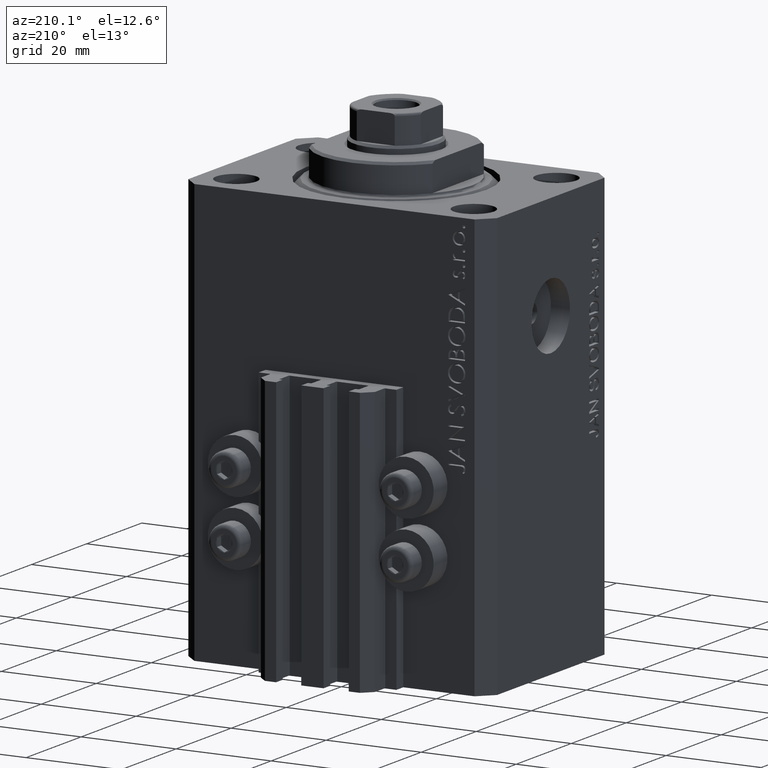
[diagram: clean part render]
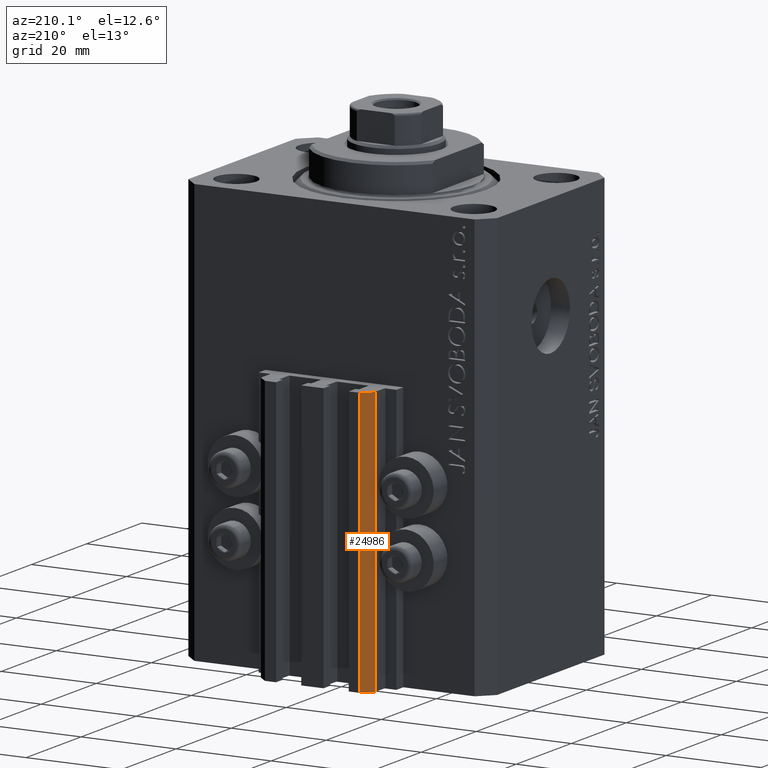
[diagram: same view with one face highlighted and labeled with its STEP entity id]
A machine part, auxiliary view. The second image highlights one B-rep face of the part: STEP entity #24986.
In plain terms, the highlighted planar face has unit normal (-0.7071, 0.7071, 0).
Its self-contained STEP definition (entity closure, byte-faithful):
#2310 = DIRECTION ( 'NONE',  ( -0.7071067811865479058, 0.7071067811865472397, 0.000000000000000000 ) ) ;
#2540 = DIRECTION ( 'NONE',  ( -0.7071067811865472397, -0.7071067811865479058, 0.000000000000000000 ) ) ;
#5678 = PLANE ( 'NONE',  #28543 ) ;
#8886 = CARTESIAN_POINT ( 'NONE',  ( -12.00000000000000000, 28.49999999999948841, -89.00000000000000000 ) ) ;
#9585 = CARTESIAN_POINT ( 'NONE',  ( -10.00000000000000000, 30.49999999999948841, -89.00000000000000000 ) ) ;
#9654 = EDGE_LOOP ( 'NONE', ( #9969, #14485, #39565, #44171 ) ) ;
#9969 = ORIENTED_EDGE ( 'NONE', *, *, #18423, .F. ) ;
#10639 = VERTEX_POINT ( 'NONE', #46385 ) ;
#11495 = VECTOR ( 'NONE', #21150, 1000.000000000000000 ) ;
#13685 = VECTOR ( 'NONE', #16761, 999.9999999999998863 ) ;
#14485 = ORIENTED_EDGE ( 'NONE', *, *, #19342, .F. ) ;
#15660 = LINE ( 'NONE', #9585, #32808 ) ;
#16761 = DIRECTION ( 'NONE',  ( -0.7071067811865472397, -0.7071067811865479058, 0.000000000000000000 ) ) ;
#16812 = CARTESIAN_POINT ( 'NONE',  ( -10.00000000000000000, 30.49999999999948841, -89.00000000000000000 ) ) ;
#18423 = EDGE_CURVE ( 'NONE', #28103, #10639, #20830, .T. ) ;
#19342 = EDGE_CURVE ( 'NONE', #33594, #28103, #15660, .T. ) ;
#20830 = LINE ( 'NONE', #42136, #13685 ) ;
#21150 = DIRECTION ( 'NONE',  ( 0.000000000000000000, 0.000000000000000000, 1.000000000000000000 ) ) ;
#23626 = DIRECTION ( 'NONE',  ( -0.7071067811865472397, -0.7071067811865479058, 0.000000000000000000 ) ) ;
#24742 = CARTESIAN_POINT ( 'NONE',  ( -12.00000000000000000, 28.49999999999948841, -89.00000000000000000 ) ) ;
#24799 = CARTESIAN_POINT ( 'NONE',  ( -10.00000000000000000, 30.49999999999948841, -89.00000000000000000 ) ) ;
#24986 = ADVANCED_FACE ( 'NONE', ( #35096 ), #5678, .T. ) ;
#28103 = VERTEX_POINT ( 'NONE', #31919 ) ;
#28543 = AXIS2_PLACEMENT_3D ( 'NONE', #41819, #2310, #23626 ) ;
#30254 = DIRECTION ( 'NONE',  ( 0.000000000000000000, 0.000000000000000000, 1.000000000000000000 ) ) ;
#31196 = VERTEX_POINT ( 'NONE', #8886 ) ;
#31919 = CARTESIAN_POINT ( 'NONE',  ( -10.00000000000000000, 30.49999999999948841, -33.00000000000000000 ) ) ;
#32808 = VECTOR ( 'NONE', #30254, 1000.000000000000000 ) ;
#32844 = VECTOR ( 'NONE', #2540, 999.9999999999998863 ) ;
#33594 = VERTEX_POINT ( 'NONE', #16812 ) ;
#35096 = FACE_OUTER_BOUND ( 'NONE', #9654, .T. ) ;
#38675 = EDGE_CURVE ( 'NONE', #33594, #31196, #39149, .T. ) ;
#39135 = EDGE_CURVE ( 'NONE', #31196, #10639, #46045, .T. ) ;
#39149 = LINE ( 'NONE', #24799, #32844 ) ;
#39565 = ORIENTED_EDGE ( 'NONE', *, *, #38675, .T. ) ;
#41819 = CARTESIAN_POINT ( 'NONE',  ( -10.00000000000000000, 30.49999999999948841, -89.00000000000000000 ) ) ;
#42136 = CARTESIAN_POINT ( 'NONE',  ( -10.00000000000000000, 30.49999999999948841, -33.00000000000000000 ) ) ;
#44171 = ORIENTED_EDGE ( 'NONE', *, *, #39135, .T. ) ;
#46045 = LINE ( 'NONE', #24742, #11495 ) ;
#46385 = CARTESIAN_POINT ( 'NONE',  ( -12.00000000000000000, 28.49999999999948841, -33.00000000000000000 ) ) ;